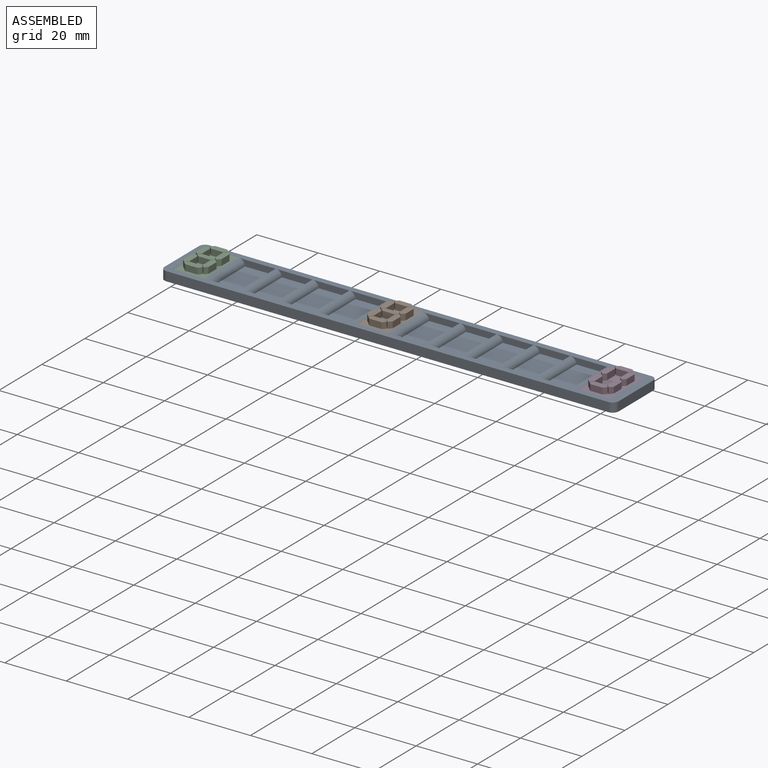
[diagram: assembled view]
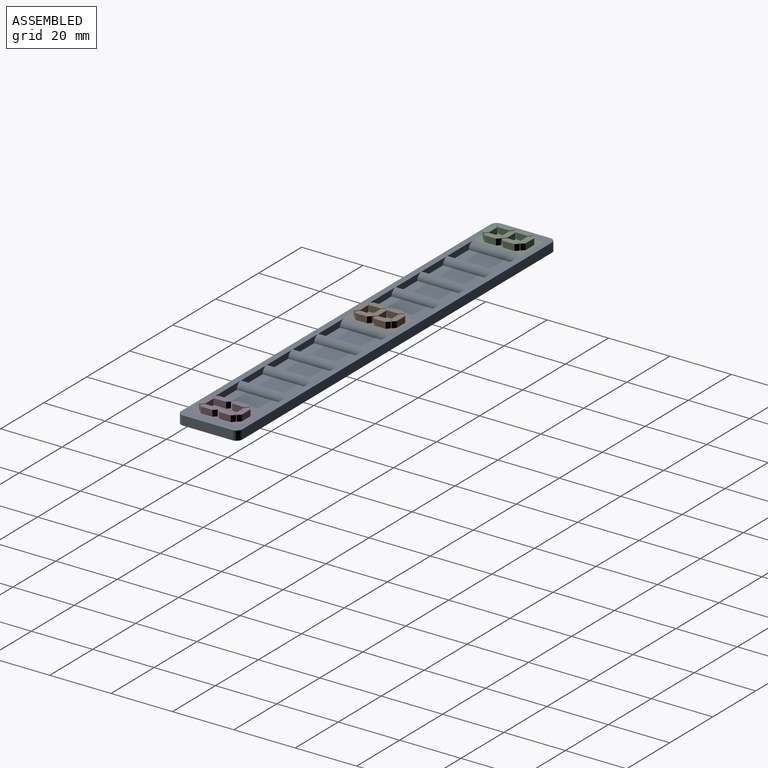
[diagram: assembled view, second angle]
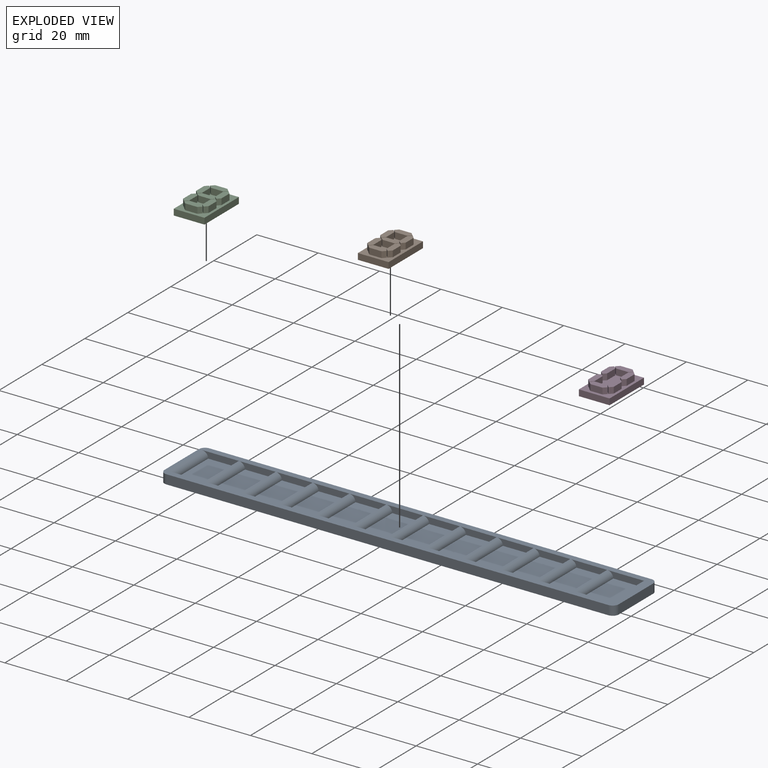
[diagram: exploded view]
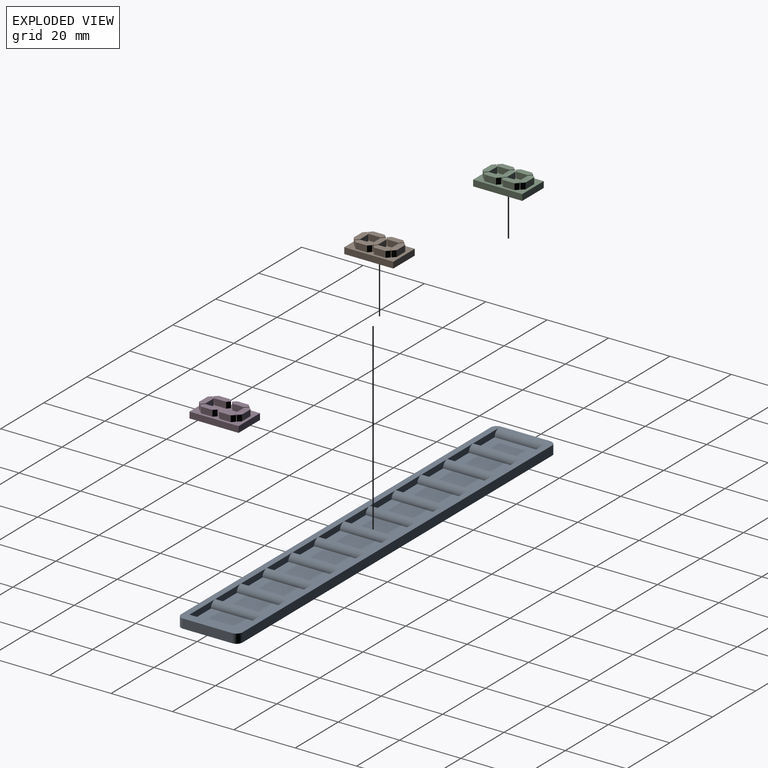
[diagram: exploded view, second angle]
ASSEMBLY  parts=4 mates=9
PART A: 70 faces, bbox 148x20x3 mm
  f0: plane 148x20mm, normal (0,0,1), area 652.6mm2, adj f1,f2,f3,f4,f6,f7,f8,f11
  f1: plane 144x3mm, normal (0,1,0), area 432mm2, adj f0,f5,f66,f69
  f2: plane 16x3mm, normal (-1,0,0), area 48mm2, adj f0,f5,f66,f67
  f3: plane 144x3mm, normal (0,-1,0), area 432mm2, adj f0,f5,f67,f68
  f4: plane 16x3mm, normal (1,0,0), area 48mm2, adj f0,f5,f68,f69
  f5: plane 148x20mm, normal (0,0,-1), area 2956.6mm2, adj f1,f2,f3,f4,f66,f67,f68,f69
  f6: plane 16x2mm, normal (-1,0,0), area 32mm2, adj f0,f7,f8,f9
  f7: plane 12x2mm, normal (0,-1,0), area 20.9mm2, adj f0,f6,f9,f54
  f8: plane 12x2mm, normal (0,1,0), area 20.9mm2, adj f0,f6,f9,f54
  f9: plane 16x10mm, normal (0,0,1), area 160mm2, adj f6,f7,f8,f54
  f10: plane 16x2mm, normal (-1,0,0), area 32mm2, adj f11,f12,f13,f54
  f11: plane 12x2mm, normal (0,-1,0), area 20.9mm2, adj f0,f10,f13,f55
  f12: plane 12x2mm, normal (0,1,0), area 20.9mm2, adj f0,f10,f13,f55
  f13: plane 16x10mm, normal (0,0,1), area 160mm2, adj f10,f11,f12,f55
  f14: plane 16x2mm, normal (-1,0,0), area 32mm2, adj f15,f16,f17,f55
  f15: plane 12x2mm, normal (0,-1,0), area 20.9mm2, adj f0,f14,f17,f56
  f16: plane 12x2mm, normal (0,1,0), area 20.9mm2, adj f0,f14,f17,f56
  f17: plane 16x10mm, normal (0,0,1), area 160mm2, adj f14,f15,f16,f56
  f18: plane 16x2mm, normal (-1,0,0), area 32mm2, adj f19,f20,f21,f56
  f19: plane 12x2mm, normal (0,-1,0), area 20.9mm2, adj f0,f18,f21,f57
  f20: plane 12x2mm, normal (0,1,0), area 20.9mm2, adj f0,f18,f21,f57
  f21: plane 16x10mm, normal (0,0,1), area 160mm2, adj f18,f19,f20,f57
  f22: plane 16x2mm, normal (-1,0,0), area 32mm2, adj f23,f24,f25,f57
  f23: plane 12x2mm, normal (0,-1,0), area 20.9mm2, adj f0,f22,f25,f58
  f24: plane 12x2mm, normal (0,1,0), area 20.9mm2, adj f0,f22,f25,f58
  f25: plane 16x10mm, normal (0,0,1), area 160mm2, adj f22,f23,f24,f58
  f26: plane 16x2mm, normal (-1,0,0), area 32mm2, adj f27,f28,f29,f58
  f27: plane 12x2mm, normal (0,-1,0), area 20.9mm2, adj f0,f26,f29,f59
  f28: plane 12x2mm, normal (0,1,0), area 20.9mm2, adj f0,f26,f29,f59
  f29: plane 16x10mm, normal (0,0,1), area 160mm2, adj f26,f27,f28,f59
  f30: plane 16x2mm, normal (-1,0,0), area 32mm2, adj f31,f32,f33,f59
  f31: plane 12x2mm, normal (0,-1,0), area 20.9mm2, adj f0,f30,f33,f60
  f32: plane 12x2mm, normal (0,1,0), area 20.9mm2, adj f0,f30,f33,f60
  f33: plane 16x10mm, normal (0,0,1), area 160mm2, adj f30,f31,f32,f60
  f34: plane 16x2mm, normal (-1,0,0), area 32mm2, adj f35,f36,f37,f60
  f35: plane 12x2mm, normal (0,-1,0), area 20.9mm2, adj f0,f34,f37,f61
  f36: plane 12x2mm, normal (0,1,0), area 20.9mm2, adj f0,f34,f37,f61
  f37: plane 16x10mm, normal (0,0,1), area 160mm2, adj f34,f35,f36,f61
  f38: plane 16x2mm, normal (-1,0,0), area 32mm2, adj f39,f40,f41,f61
  f39: plane 12x2mm, normal (0,-1,0), area 20.9mm2, adj f0,f38,f41,f62
  f40: plane 12x2mm, normal (0,1,0), area 20.9mm2, adj f0,f38,f41,f62
  f41: plane 16x10mm, normal (0,0,1), area 160mm2, adj f38,f39,f40,f62
  f42: plane 16x2mm, normal (-1,0,0), area 32mm2, adj f43,f44,f45,f62
  f43: plane 12x2mm, normal (0,-1,0), area 20.9mm2, adj f0,f42,f45,f63
  f44: plane 12x2mm, normal (0,1,0), area 20.9mm2, adj f0,f42,f45,f63
  f45: plane 16x10mm, normal (0,0,1), area 160mm2, adj f42,f43,f44,f63
  f46: plane 16x2mm, normal (-1,0,0), area 32mm2, adj f47,f48,f49,f63
  f47: plane 12x2mm, normal (0,-1,0), area 20.9mm2, adj f0,f46,f49,f64
  f48: plane 12x2mm, normal (0,1,0), area 20.9mm2, adj f0,f46,f49,f64
  f49: plane 16x10mm, normal (0,0,1), area 160mm2, adj f46,f47,f48,f64
  f50: plane 12x2mm, normal (0,1,0), area 20.9mm2, adj f0,f51,f53,f65
  f51: plane 16x2mm, normal (-1,0,0), area 32mm2, adj f50,f52,f53,f64
  f52: plane 12x2mm, normal (0,-1,0), area 20.9mm2, adj f0,f51,f53,f65
  f53: plane 16x10mm, normal (0,0,1), area 160mm2, adj f50,f51,f52,f65
  f54: cylinder r=2mm len=16mm, axis (0,1,0), area 50.3mm2, adj f7,f8,f9,f10
  f55: cylinder r=2mm len=16mm, axis (0,1,0), area 50.3mm2, adj f11,f12,f13,f14
  f56: cylinder r=2mm len=16mm, axis (0,1,0), area 50.3mm2, adj f15,f16,f17,f18
  f57: cylinder r=2mm len=16mm, axis (0,1,0), area 50.3mm2, adj f19,f20,f21,f22
  f58: cylinder r=2mm len=16mm, axis (0,1,0), area 50.3mm2, adj f23,f24,f25,f26
  f59: cylinder r=2mm len=16mm, axis (0,1,0), area 50.3mm2, adj f27,f28,f29,f30
  f60: cylinder r=2mm len=16mm, axis (0,1,0), area 50.3mm2, adj f31,f32,f33,f34
  f61: cylinder r=2mm len=16mm, axis (0,1,0), area 50.3mm2, adj f35,f36,f37,f38
  f62: cylinder r=2mm len=16mm, axis (0,1,0), area 50.3mm2, adj f39,f40,f41,f42
  f63: cylinder r=2mm len=16mm, axis (0,1,0), area 50.3mm2, adj f43,f44,f45,f46
  f64: cylinder r=2mm len=16mm, axis (0,1,0), area 50.3mm2, adj f47,f48,f49,f51
  f65: cylinder r=2mm len=16mm, axis (0,1,0), area 50.3mm2, adj f0,f50,f52,f53
  f66: cylinder r=2mm len=3mm, axis (0,0,1), area 9.4mm2, adj f0,f1,f2,f5
  f67: cylinder r=2mm len=3mm, axis (0,0,-1), area 9.4mm2, adj f0,f2,f3,f5
  f68: cylinder r=2mm len=3mm, axis (0,0,1), area 9.4mm2, adj f0,f3,f4,f5
  f69: cylinder r=2mm len=3mm, axis (0,0,-1), area 9.4mm2, adj f0,f1,f4,f5
PART B: 57 faces, bbox 10x16x4 mm
  f0: plane 16x10mm, normal (0,0,1), area 93.1mm2, adj f1,f2,f3,f4,f6,f7,f8,f9
  f1: plane 16x2mm, normal (1,0,0), area 32mm2, adj f0,f2,f4,f5
  f2: plane 10x2mm, normal (0,1,0), area 20mm2, adj f0,f1,f3,f5
  f3: plane 16x2mm, normal (-1,0,0), area 32mm2, adj f0,f2,f4,f5
  f4: plane 10x2mm, normal (0,-1,0), area 20mm2, adj f0,f1,f3,f5
  f5: plane 16x10mm, normal (0,0,-1), area 160mm2, adj f1,f2,f3,f4
  f6: plane 4x2mm, normal (0,-1,0), area 8mm2, adj f0,f7,f11,f12
  f7: plane 2x1mm, normal (0.71,-0.71,0), area 2.8mm2, adj f0,f6,f8,f12
  f8: plane 2x1mm, normal (0.71,0.71,0), area 2.8mm2, adj f0,f7,f9,f12
  f9: plane 4x2mm, normal (0,1,0), area 8mm2, adj f0,f8,f10,f12
  f10: plane 2x1mm, normal (-0.71,0.71,0), area 2.8mm2, adj f0,f9,f11,f12
  f11: plane 2x1mm, normal (-0.71,-0.71,0), area 2.8mm2, adj f0,f6,f10,f12
  f12: plane 6x2mm, normal (0,0,1), area 10mm2, adj f6,f7,f8,f9,f10,f11
  f13: plane 2x1mm, normal (-0.71,0.71,0), area 2.8mm2, adj f0,f14,f18,f19
  f14: plane 3.71x2mm, normal (-1,0,0), area 7.4mm2, adj f0,f13,f15,f19
  f15: plane 2x1.01mm, normal (-0.71,-0.71,0), area 2.8mm2, adj f0,f14,f16,f19
  f16: plane 2x1mm, normal (0.67,-0.75,0), area 2.7mm2, adj f0,f15,f17,f19
  f17: plane 3.83x2mm, normal (1,0,0), area 7.7mm2, adj f0,f16,f18,f19
  f18: plane 2x1mm, normal (0.71,0.71,0), area 2.8mm2, adj f0,f13,f17,f19
  f19: plane 5.71x2mm, normal (0,0,1), area 9.5mm2, adj f13,f14,f15,f16,f17,f18
  f20: plane 2x2mm, normal (0,-1,0), area 4mm2, adj f0,f21,f27,f28
  f21: plane 2x2mm, normal (0,-1,0), area 4mm2, adj f0,f20,f22,f28
  f22: plane 2x1mm, normal (0.67,-0.75,0), area 2.7mm2, adj f0,f21,f23,f28
  f23: plane 2x1mm, normal (0.67,0.75,0), area 2.7mm2, adj f0,f22,f24,f28
  f24: plane 2x2mm, normal (0,1,0), area 4mm2, adj f0,f23,f25,f28
  f25: plane 2x2mm, normal (0,1,0), area 4mm2, adj f0,f24,f26,f28
  f26: plane 2x1mm, normal (-0.67,0.75,0), area 2.7mm2, adj f0,f25,f27,f28
  f27: plane 2x1mm, normal (-0.67,-0.75,0), area 2.7mm2, adj f0,f20,f26,f28
  f28: plane 6x1.8mm, normal (0,0,1), area 9mm2, adj f20,f21,f22,f23,f24,f25,f26,f27
  f29: plane 4x2mm, normal (0,-1,0), area 8mm2, adj f0,f30,f34,f35
  f30: plane 2x1mm, normal (0.71,-0.71,0), area 2.8mm2, adj f0,f29,f31,f35
  f31: plane 2x1mm, normal (0.71,0.71,0), area 2.8mm2, adj f0,f30,f32,f35
  f32: plane 4x2mm, normal (0,1,0), area 8mm2, adj f0,f31,f33,f35
  f33: plane 2x1mm, normal (-0.71,0.71,0), area 2.8mm2, adj f0,f32,f34,f35
  f34: plane 2x1mm, normal (-0.71,-0.71,0), area 2.8mm2, adj f0,f29,f33,f35
  f35: plane 6x2mm, normal (0,0,1), area 10mm2, adj f29,f30,f31,f32,f33,f34
  f36: plane 3.83x2mm, normal (1,0,0), area 7.7mm2, adj f0,f37,f41,f42
  f37: plane 2x1mm, normal (0.67,0.75,0), area 2.7mm2, adj f0,f36,f38,f42
  f38: plane 2x1.01mm, normal (-0.71,0.71,0), area 2.8mm2, adj f0,f37,f39,f42
  f39: plane 3.71x2mm, normal (-1,0,0), area 7.4mm2, adj f0,f38,f40,f42
  f40: plane 2x1mm, normal (-0.71,-0.71,0), area 2.8mm2, adj f0,f39,f41,f42
  f41: plane 2x1mm, normal (0.71,-0.71,0), area 2.8mm2, adj f0,f36,f40,f42
  f42: plane 5.71x2mm, normal (0,0,1), area 9.5mm2, adj f36,f37,f38,f39,f40,f41
  f43: plane 3.83x2mm, normal (-1,0,0), area 7.7mm2, adj f0,f44,f48,f49
  f44: plane 2x1mm, normal (-0.67,-0.75,0), area 2.7mm2, adj f0,f43,f45,f49
  f45: plane 2x1.01mm, normal (0.71,-0.71,0), area 2.8mm2, adj f0,f44,f46,f49
  f46: plane 3.71x2mm, normal (1,0,0), area 7.4mm2, adj f0,f45,f47,f49
  f47: plane 2x1mm, normal (0.71,0.71,0), area 2.8mm2, adj f0,f46,f48,f49
  f48: plane 2x1mm, normal (-0.71,0.71,0), area 2.8mm2, adj f0,f43,f47,f49
  f49: plane 5.71x2mm, normal (0,0,1), area 9.5mm2, adj f43,f44,f45,f46,f47,f48
  f50: plane 2x1mm, normal (-0.71,-0.71,0), area 2.8mm2, adj f0,f51,f55,f56
  f51: plane 2x1mm, normal (0.71,-0.71,0), area 2.8mm2, adj f0,f50,f52,f56
  f52: plane 3.71x2mm, normal (1,0,0), area 7.4mm2, adj f0,f51,f53,f56
  f53: plane 2x1.01mm, normal (0.71,0.71,0), area 2.8mm2, adj f0,f52,f54,f56
  f54: plane 2x1mm, normal (-0.67,0.75,0), area 2.7mm2, adj f0,f53,f55,f56
  f55: plane 3.83x2mm, normal (-1,0,0), area 7.7mm2, adj f0,f50,f54,f56
  f56: plane 5.71x2mm, normal (0,0,1), area 9.5mm2, adj f50,f51,f52,f53,f54,f55
PART C: same geometry as B
PART D: 48 faces, bbox 10x16x4 mm
  f0: plane 16x10mm, normal (0,0,1), area 102.1mm2, adj f1,f2,f3,f4,f6,f7,f8,f9
  f1: plane 16x2mm, normal (1,0,0), area 32mm2, adj f0,f2,f4,f5
  f2: plane 10x2mm, normal (0,1,0), area 20mm2, adj f0,f1,f3,f5
  f3: plane 16x2mm, normal (-1,0,0), area 32mm2, adj f0,f2,f4,f5
  f4: plane 10x2mm, normal (0,-1,0), area 20mm2, adj f0,f1,f3,f5
  f5: plane 16x10mm, normal (0,0,-1), area 160mm2, adj f1,f2,f3,f4
  f6: plane 4x2mm, normal (0,-1,0), area 8mm2, adj f0,f7,f11,f12
  f7: plane 2x1mm, normal (0.71,-0.71,0), area 2.8mm2, adj f0,f6,f8,f12
  f8: plane 2x1mm, normal (0.71,0.71,0), area 2.8mm2, adj f0,f7,f9,f12
  f9: plane 4x2mm, normal (0,1,0), area 8mm2, adj f0,f8,f10,f12
  f10: plane 2x1mm, normal (-0.71,0.71,0), area 2.8mm2, adj f0,f9,f11,f12
  f11: plane 2x1mm, normal (-0.71,-0.71,0), area 2.8mm2, adj f0,f6,f10,f12
  f12: plane 6x2mm, normal (0,0,1), area 10mm2, adj f6,f7,f8,f9,f10,f11
  f13: plane 2x1mm, normal (-0.71,0.71,0), area 2.8mm2, adj f0,f14,f18,f19
  f14: plane 3.71x2mm, normal (-1,0,0), area 7.4mm2, adj f0,f13,f15,f19
  f15: plane 2x1.01mm, normal (-0.71,-0.71,0), area 2.8mm2, adj f0,f14,f16,f19
  f16: plane 2x1mm, normal (0.67,-0.75,0), area 2.7mm2, adj f0,f15,f17,f19
  f17: plane 3.83x2mm, normal (1,0,0), area 7.7mm2, adj f0,f16,f18,f19
  f18: plane 2x1mm, normal (0.71,0.71,0), area 2.8mm2, adj f0,f13,f17,f19
  f19: plane 5.71x2mm, normal (0,0,1), area 9.5mm2, adj f13,f14,f15,f16,f17,f18
  f20: plane 4x2mm, normal (0,-1,0), area 8mm2, adj f0,f21,f25,f26
  f21: plane 2x1mm, normal (0.71,-0.71,0), area 2.8mm2, adj f0,f20,f22,f26
  f22: plane 2x1mm, normal (0.71,0.71,0), area 2.8mm2, adj f0,f21,f23,f26
  f23: plane 4x2mm, normal (0,1,0), area 8mm2, adj f0,f22,f24,f26
  f24: plane 2x1mm, normal (-0.71,0.71,0), area 2.8mm2, adj f0,f23,f25,f26
  f25: plane 2x1mm, normal (-0.71,-0.71,0), area 2.8mm2, adj f0,f20,f24,f26
  f26: plane 6x2mm, normal (0,0,1), area 10mm2, adj f20,f21,f22,f23,f24,f25
  f27: plane 3.83x2mm, normal (1,0,0), area 7.7mm2, adj f0,f28,f32,f33
  f28: plane 2x1mm, normal (0.67,0.75,0), area 2.7mm2, adj f0,f27,f29,f33
  f29: plane 2x1.01mm, normal (-0.71,0.71,0), area 2.8mm2, adj f0,f28,f30,f33
  f30: plane 3.71x2mm, normal (-1,0,0), area 7.4mm2, adj f0,f29,f31,f33
  f31: plane 2x1mm, normal (-0.71,-0.71,0), area 2.8mm2, adj f0,f30,f32,f33
  f32: plane 2x1mm, normal (0.71,-0.71,0), area 2.8mm2, adj f0,f27,f31,f33
  f33: plane 5.71x2mm, normal (0,0,1), area 9.5mm2, adj f27,f28,f29,f30,f31,f32
  f34: plane 3.83x2mm, normal (-1,0,0), area 7.7mm2, adj f0,f35,f39,f40
  f35: plane 2x1mm, normal (-0.67,-0.75,0), area 2.7mm2, adj f0,f34,f36,f40
  f36: plane 2x1.01mm, normal (0.71,-0.71,0), area 2.8mm2, adj f0,f35,f37,f40
  f37: plane 3.71x2mm, normal (1,0,0), area 7.4mm2, adj f0,f36,f38,f40
  f38: plane 2x1mm, normal (0.71,0.71,0), area 2.8mm2, adj f0,f37,f39,f40
  f39: plane 2x1mm, normal (-0.71,0.71,0), area 2.8mm2, adj f0,f34,f38,f40
  f40: plane 5.71x2mm, normal (0,0,1), area 9.5mm2, adj f34,f35,f36,f37,f38,f39
  f41: plane 2x1mm, normal (-0.71,-0.71,0), area 2.8mm2, adj f0,f42,f46,f47
  f42: plane 2x1mm, normal (0.71,-0.71,0), area 2.8mm2, adj f0,f41,f43,f47
  f43: plane 3.71x2mm, normal (1,0,0), area 7.4mm2, adj f0,f42,f44,f47
  f44: plane 2x1.01mm, normal (0.71,0.71,0), area 2.8mm2, adj f0,f43,f45,f47
  f45: plane 2x1mm, normal (-0.67,0.75,0), area 2.7mm2, adj f0,f44,f46,f47
  f46: plane 3.83x2mm, normal (-1,0,0), area 7.7mm2, adj f0,f41,f45,f47
  f47: plane 5.71x2mm, normal (0,0,1), area 9.5mm2, adj f41,f42,f43,f44,f45,f46
PLACE A t=(-53.52,102.6,10.33)mm fixed
PLACE B t=(-60.54,103.06,11.33)mm
PLACE C t=(-120.54,103.06,11.33)mm
PLACE D t=(11.46,103.06,11.33)mm
MATE parallel C.f5 <-> A.f53  axis (0,0,-1) through (-120.54,103.06,11.33)mm
MATE planar C.f5 <-> A.f53  axis (0,0,-1) through (-120.54,103.06,11.33)mm
MATE planar A.f30 <-> B.f1  axis (-1,0,0) through (-55.54,103.06,12.33)mm
MATE planar C.f4 <-> A.f50  axis (0,-1,0) through (-120.54,95.06,12.33)mm
MATE fastened A.f9 <-> D.f5  axis (0,0,1) through (11.46,103.06,11.33)mm
MATE planar B.f4 <-> A.f32  axis (0,-1,0) through (-60.54,95.06,12.33)mm
MATE planar D.f5 <-> A.f9  axis (0,0,-1) through (11.46,103.06,11.33)mm
MATE planar A.f33 <-> B.f5  axis (0,0,1) through (-60.54,103.06,11.33)mm
MATE planar A.f51 <-> C.f1  axis (-1,0,0) through (-115.54,103.06,12.33)mm
